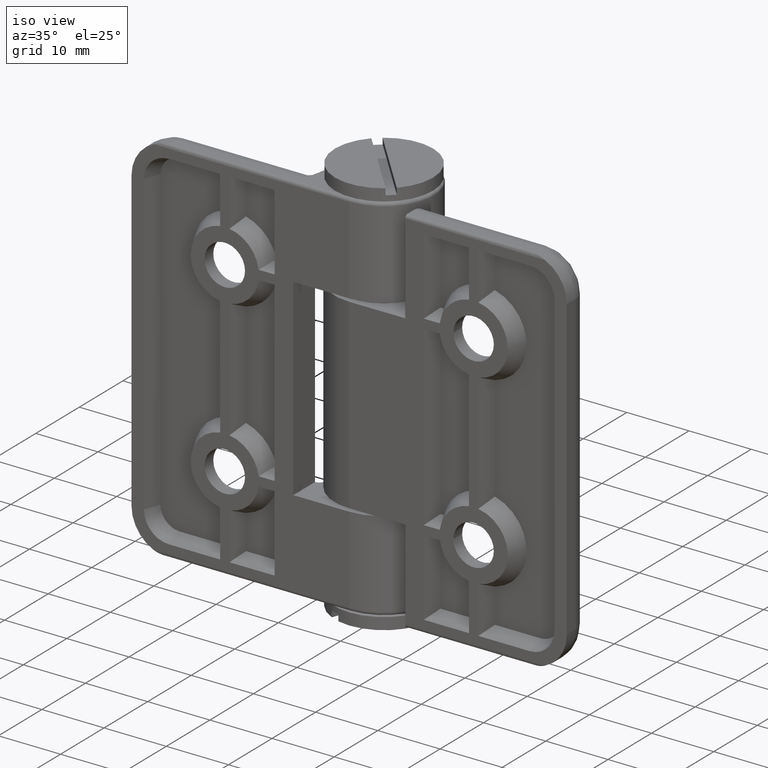
[diagram: clean part render]
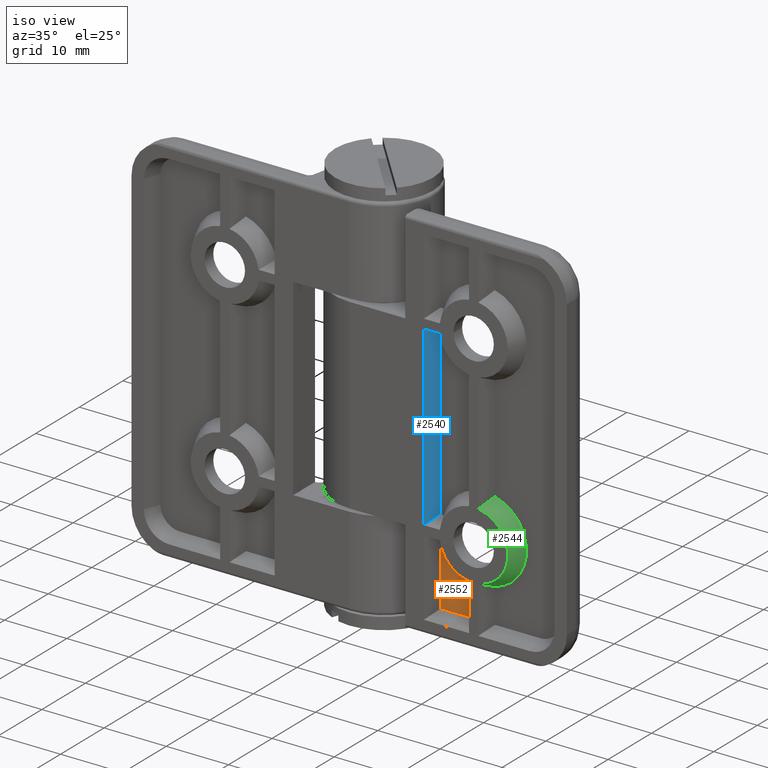
[diagram: same view with three faces highlighted in distinct colors, each labeled with its STEP entity id]
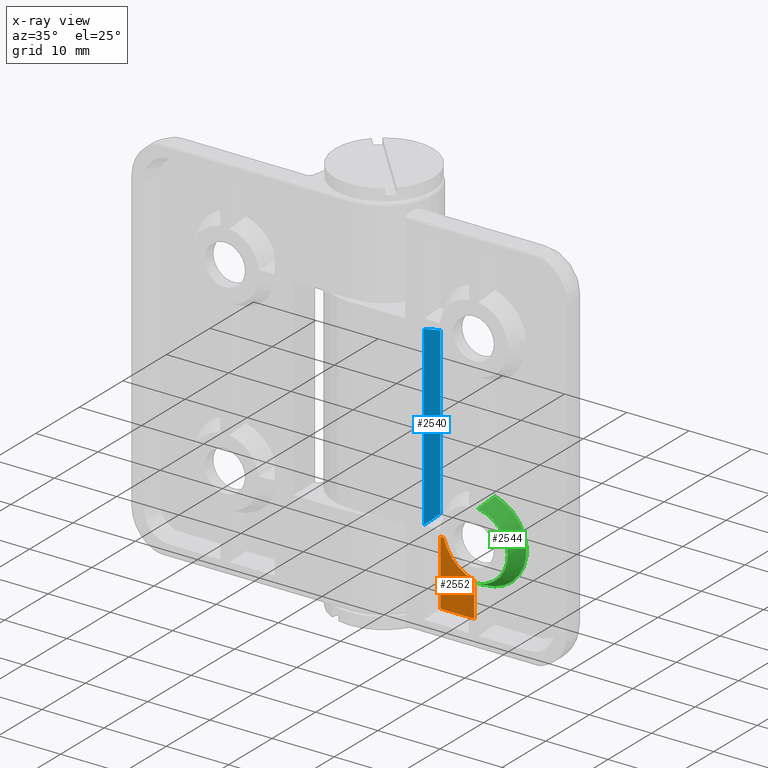
[diagram: x-ray of the same camera — body ghosted, the three highlighted faces saturated]
A machine part, iso view with three faces highlighted in distinct colors.
The next image is the same camera in x-ray (body ghosted, the three faces saturated) — at least one of them is partly hidden behind the body in this view.
Their STEP definitions:

[orange] entity #2552 — the highlighted planar face has unit normal (0, -1, -0).
#226=LINE('',#4438,#400);
#228=LINE('',#4451,#402);
#249=LINE('',#4522,#423);
#255=LINE('',#4541,#429);
#400=VECTOR('',#3413,0.5473573143788);
#402=VECTOR('',#3417,5.5473573143788);
#423=VECTOR('',#3454,10.430148828669);
#429=VECTOR('',#3482,5.430148828669);
#721=FACE_OUTER_BOUND('',#933,.T.);
#933=EDGE_LOOP('',(#2180,#2181,#2182,#2183,#2184));
#1068=CIRCLE('',#2807,6.75);
#1271=VERTEX_POINT('',#4434);
#1273=VERTEX_POINT('',#4437);
#1275=VERTEX_POINT('',#4445);
#1277=VERTEX_POINT('',#4450);
#1298=VERTEX_POINT('',#4520);
#1562=EDGE_CURVE('',#1273,#1271,#226,.T.);
#1566=EDGE_CURVE('',#1277,#1275,#228,.T.);
#1594=EDGE_CURVE('',#1271,#1298,#249,.T.);
#1600=EDGE_CURVE('',#1275,#1273,#1068,.T.);
#1605=EDGE_CURVE('',#1298,#1277,#255,.T.);
#2180=ORIENTED_EDGE('',*,*,#1562,.T.);
#2181=ORIENTED_EDGE('',*,*,#1594,.T.);
#2182=ORIENTED_EDGE('',*,*,#1605,.T.);
#2183=ORIENTED_EDGE('',*,*,#1566,.T.);
#2184=ORIENTED_EDGE('',*,*,#1600,.T.);
#2408=PLANE('',#2827);
#2552=ADVANCED_FACE('',(#721),#2408,.T.);
#2807=AXIS2_PLACEMENT_3D('',#4533,#3466,#3467);
#2827=AXIS2_PLACEMENT_3D('',#4581,#3516,#3517);
#3413=DIRECTION('',(1.,4.81096644004235E-16,2.20257876733059E-17));
#3417=DIRECTION('',(1.7347041199964E-17,-4.75642688586297E-32,-1.));
#3454=DIRECTION('',(-7.23627507121754E-16,-2.25512398500681E-31,1.));
#3466=DIRECTION('center_axis',(-4.81096644004235E-16,1.,-5.59098721633356E-32));
#3467=DIRECTION('ref_axis',(-1.,-4.81096644004235E-16,9.47421260004182E-48));
#3482=DIRECTION('',(-1.,-3.11641550771974E-16,5.2245789394125E-16));
#3516=DIRECTION('center_axis',(4.81096644004235E-16,-1.,5.59098721633356E-32));
#3517=DIRECTION('ref_axis',(0.,0.,-1.));
#4434=CARTESIAN_POINT('',(-12.9099255856655,-5.50000000000001,16.6599255856655));
#4437=CARTESIAN_POINT('',(-13.4572829000443,-5.50000000000001,16.6599255856655));
#4438=CARTESIAN_POINT('',(-18.27365090259,-5.50000000000001,16.6599255856655));
#4445=CARTESIAN_POINT('',(-18.3400744143345,-5.50000000000001,21.5427170999557));
#4450=CARTESIAN_POINT('',(-18.3400744143345,-5.50000000000001,27.0900744143345));
#4451=CARTESIAN_POINT('',(-18.3400744143345,-5.50000000000001,14.));
#4520=CARTESIAN_POINT('',(-12.9099255856655,-5.50000000000001,27.0900744143345));
#4522=CARTESIAN_POINT('',(-12.9099255856655,-5.50000000000001,28.));
#4533=CARTESIAN_POINT('Origin',(-20.,-5.50000000000001,15.));
#4541=CARTESIAN_POINT('',(-29.,-5.50000000000001,27.0900744143345));
#4581=CARTESIAN_POINT('Origin',(-22.0473018051801,-5.50000000000001,-7.22954525272387E-15));

[blue] entity #2540 — the highlighted planar face has unit normal (-0.9397, 0.342, -0).
#234=LINE('',#4472,#408);
#237=LINE('',#4487,#411);
#250=LINE('',#4524,#424);
#251=LINE('',#4525,#425);
#408=VECTOR('',#3427,2.81174841386946);
#411=VECTOR('',#3434,2.81174841386946);
#424=VECTOR('',#3457,28.5);
#425=VECTOR('',#3458,26.680148828669);
#709=FACE_OUTER_BOUND('',#919,.T.);
#919=EDGE_LOOP('',(#2136,#2137,#2138,#2139));
#1283=VERTEX_POINT('',#4469);
#1284=VERTEX_POINT('',#4471);
#1287=VERTEX_POINT('',#4485);
#1288=VERTEX_POINT('',#4486);
#1574=EDGE_CURVE('',#1284,#1283,#234,.T.);
#1579=EDGE_CURVE('',#1287,#1288,#237,.T.);
#1595=EDGE_CURVE('',#1287,#1283,#250,.T.);
#1596=EDGE_CURVE('',#1284,#1288,#251,.T.);
#2136=ORIENTED_EDGE('',*,*,#1574,.T.);
#2137=ORIENTED_EDGE('',*,*,#1595,.F.);
#2138=ORIENTED_EDGE('',*,*,#1579,.T.);
#2139=ORIENTED_EDGE('',*,*,#1596,.F.);
#2403=PLANE('',#2804);
#2540=ADVANCED_FACE('',(#709),#2403,.F.);
#2804=AXIS2_PLACEMENT_3D('',#4523,#3455,#3456);
#3427=DIRECTION('',(0.323615577118185,-0.889126490715988,-0.323615577118185));
#3434=DIRECTION('',(-0.323615577118184,0.889126490715988,-0.323615577118185));
#3455=DIRECTION('center_axis',(0.939692620785909,0.342020143325668,6.79987428640015E-16));
#3456=DIRECTION('ref_axis',(0.,0.,-1.));
#3457=DIRECTION('',(7.23627507121754E-16,2.25512398500681E-31,-1.));
#3458=DIRECTION('',(-7.23627507121754E-16,-2.25512398500681E-31,1.));
#4469=CARTESIAN_POINT('',(-12.,-8.00000000000001,-14.25));
#4471=CARTESIAN_POINT('',(-12.9099255856655,-5.50000000000001,-13.3400744143345));
#4472=CARTESIAN_POINT('',(-11.4109103901363,-9.61851040113568,-14.8390896098636));
#4485=CARTESIAN_POINT('',(-12.,-8.00000000000001,14.25));
#4486=CARTESIAN_POINT('',(-12.9099255856655,-5.50000000000001,13.3400744143345));
#4487=CARTESIAN_POINT('',(-14.2123587570434,-1.92159427129045,12.0376412429566));
#4523=CARTESIAN_POINT('Origin',(-12.,-8.00000000000001,-28.));
#4524=CARTESIAN_POINT('',(-12.,-8.00000000000001,-14.));
#4525=CARTESIAN_POINT('',(-12.9099255856655,-5.50000000000001,28.));

[green] entity #2544 — the highlighted conical surface has half-angle 26.565 deg.
#75=(
BOUNDED_CURVE()
B_SPLINE_CURVE(2,(#4481,#4482,#4483),.UNSPECIFIED.,.F.,.F.)
B_SPLINE_CURVE_WITH_KNOTS((3,3),(0.,0.287668637562989),.UNSPECIFIED.)
CURVE()
GEOMETRIC_REPRESENTATION_ITEM()
RATIONAL_B_SPLINE_CURVE((1.,1.00256398247929,1.))
REPRESENTATION_ITEM('')
);
#77=(
BOUNDED_CURVE()
B_SPLINE_CURVE(2,(#4497,#4498,#4499),.UNSPECIFIED.,.F.,.F.)
B_SPLINE_CURVE_WITH_KNOTS((3,3),(0.,0.287668637562989),.UNSPECIFIED.)
CURVE()
GEOMETRIC_REPRESENTATION_ITEM()
RATIONAL_B_SPLINE_CURVE((1.,1.00256398247985,1.))
REPRESENTATION_ITEM('')
);
#107=CONICAL_SURFACE('',#2812,6.75,0.463647609000806);
#713=FACE_OUTER_BOUND('',#923,.T.);
#923=EDGE_LOOP('',(#2152,#2153,#2154,#2155));
#1066=CIRCLE('',#2788,6.75);
#1072=CIRCLE('',#2813,5.5);
#1259=VERTEX_POINT('',#4398);
#1260=VERTEX_POINT('',#4400);
#1286=VERTEX_POINT('',#4479);
#1291=VERTEX_POINT('',#4496);
#1549=EDGE_CURVE('',#1259,#1260,#1066,.T.);
#1578=EDGE_CURVE('',#1259,#1286,#75,.T.);
#1583=EDGE_CURVE('',#1291,#1260,#77,.T.);
#1604=EDGE_CURVE('',#1286,#1291,#1072,.T.);
#2152=ORIENTED_EDGE('',*,*,#1578,.T.);
#2153=ORIENTED_EDGE('',*,*,#1604,.T.);
#2154=ORIENTED_EDGE('',*,*,#1583,.T.);
#2155=ORIENTED_EDGE('',*,*,#1549,.F.);
#2544=ADVANCED_FACE('',(#713),#107,.T.);
#2788=AXIS2_PLACEMENT_3D('',#4401,#3391,#3392);
#2812=AXIS2_PLACEMENT_3D('',#4538,#3476,#3477);
#2813=AXIS2_PLACEMENT_3D('',#4539,#3478,#3479);
#3391=DIRECTION('center_axis',(-4.81096644004235E-16,1.,-5.59098721633356E-32));
#3392=DIRECTION('ref_axis',(-1.,-4.81096644004235E-16,9.47421260004182E-48));
#3476=DIRECTION('center_axis',(-4.81096644004235E-16,1.,-5.59098721633356E-32));
#3477=DIRECTION('ref_axis',(-1.,-4.81096644004235E-16,9.47421260004182E-48));
#3478=DIRECTION('center_axis',(-3.11641550771974E-16,1.,0.));
#3479=DIRECTION('ref_axis',(-1.,-3.11641550771974E-16,0.));
#4398=CARTESIAN_POINT('',(-21.6599255856655,-5.50000000000001,8.45728290004428));
#4400=CARTESIAN_POINT('',(-21.6599255856655,-5.50000000000001,21.5427170999557));
#4401=CARTESIAN_POINT('Origin',(-20.,-5.50000000000001,15.));
#4479=CARTESIAN_POINT('',(-20.75,-8.00000000000001,9.55137632057416));
#4481=CARTESIAN_POINT('Ctrl Pts',(-21.6599255856655,-5.5,8.45728290004427));
#4482=CARTESIAN_POINT('Ctrl Pts',(-21.1634518552834,-6.86405036357732,9.03495735419834));
#4483=CARTESIAN_POINT('Ctrl Pts',(-20.75,-8.00000000000001,9.55137632057416));
#4496=CARTESIAN_POINT('',(-20.75,-8.00000000000001,20.4486236794258));
#4497=CARTESIAN_POINT('Ctrl Pts',(-20.75,-8.00000000000001,20.4486236794258));
#4498=CARTESIAN_POINT('Ctrl Pts',(-21.1634518552834,-6.86405036357736,20.9650426458016));
#4499=CARTESIAN_POINT('Ctrl Pts',(-21.6599255856655,-5.5,21.5427170999557));
#4538=CARTESIAN_POINT('Origin',(-20.,-5.50000000000001,15.));
#4539=CARTESIAN_POINT('Origin',(-20.,-8.00000000000001,15.));